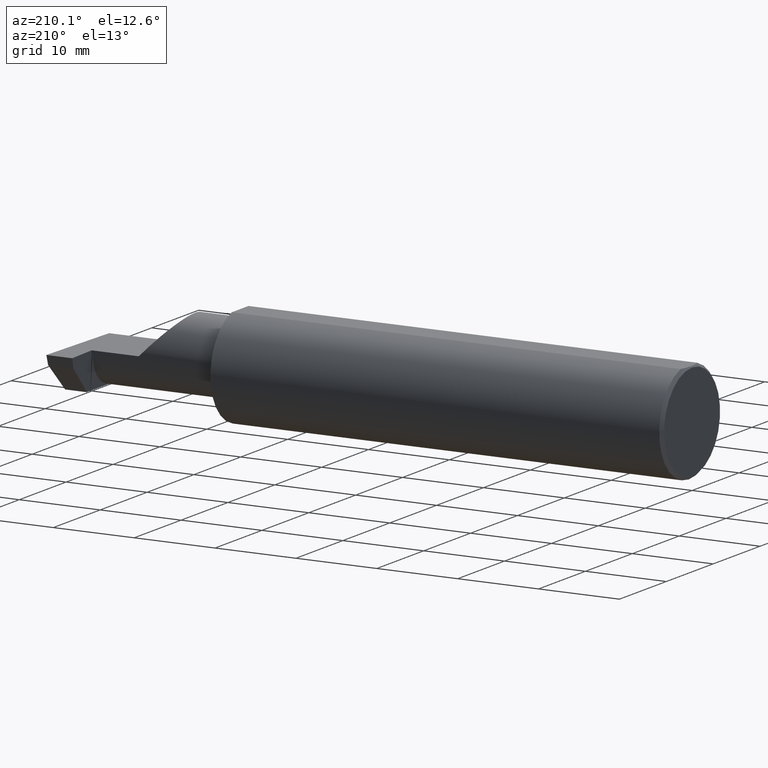
[diagram: clean part render]
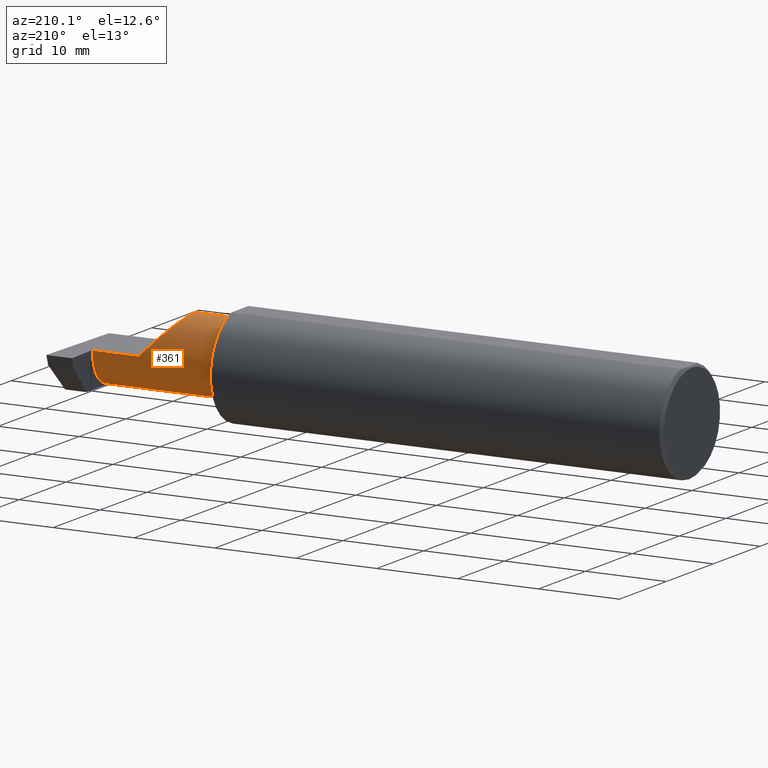
[diagram: same view with one face highlighted and labeled with its STEP entity id]
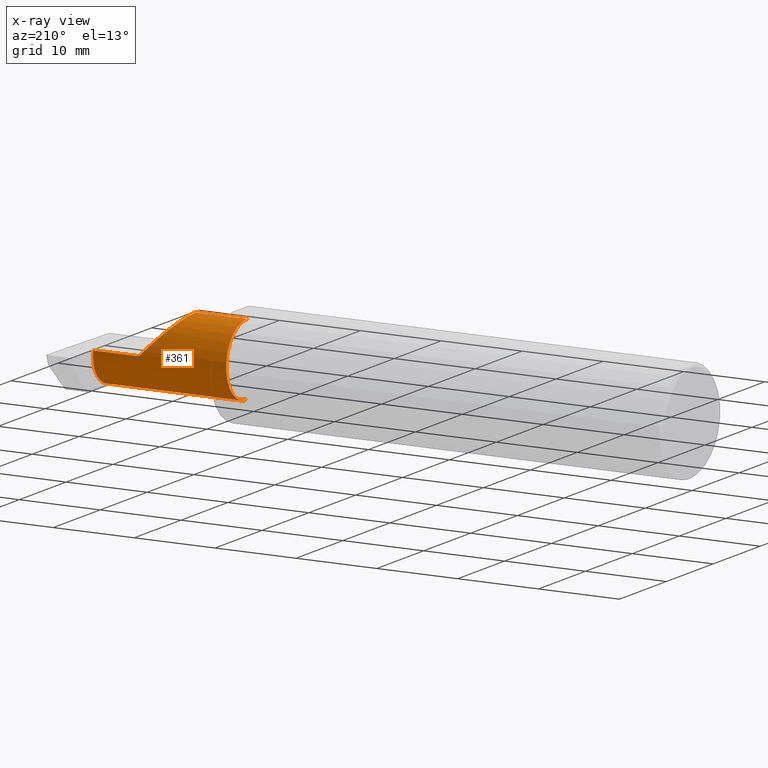
[diagram: x-ray of the same camera — body ghosted, the highlighted face saturated]
A machine part, auxiliary view. The second image highlights one B-rep face of the part: STEP entity #361.
The next image is the same camera in x-ray: the body ghosted, the highlighted face saturated — about 0% of this face is hidden behind the body in this view.
In plain terms, the highlighted cylindrical surface (partial cylindrical patch) has radius 4.445 mm, axis along (-1, -0, -0).
Its self-contained STEP definition (entity closure, byte-faithful):
#19 = EDGE_CURVE ( 'NONE', #341, #55, #82, .T. ) ;
#34 = CARTESIAN_POINT ( 'NONE',  ( 2.885036419112081862, -0.01887343476265496492, -0.1750000000000000444 ) ) ;
#37 = CARTESIAN_POINT ( 'NONE',  ( 2.874000000000000110, 0.07414999999999997982, 9.797164290271514876E-17 ) ) ;
#40 = VECTOR ( 'NONE', #523, 39.37007874015748143 ) ;
#45 = VERTEX_POINT ( 'NONE', #262 ) ;
#55 = VERTEX_POINT ( 'NONE', #431 ) ;
#72 = VERTEX_POINT ( 'NONE', #679 ) ;
#76 =( BOUNDED_CURVE ( )  B_SPLINE_CURVE ( 3, ( #731, #175, #315, #556 ),
 .UNSPECIFIED., .F., .T. ) 
 B_SPLINE_CURVE_WITH_KNOTS ( ( 4, 4 ),
 ( 0.000000000000000000, 1.570796326794896558 ),
 .UNSPECIFIED. ) 
 CURVE ( )  GEOMETRIC_REPRESENTATION_ITEM ( )  RATIONAL_B_SPLINE_CURVE ( ( 1.000000000000000000, 0.8047378541243649375, 0.8047378541243649375, 1.000000000000000000 ) ) 
 REPRESENTATION_ITEM ( '' )  );
#82 = CIRCLE ( 'NONE', #371, 0.1749999999999999889 ) ;
#109 = CYLINDRICAL_SURFACE ( 'NONE', #689, 0.1749999999999999889 ) ;
#110 = ORIENTED_EDGE ( 'NONE', *, *, #194, .T. ) ;
#119 = CIRCLE ( 'NONE', #678, 0.1749999999999999889 ) ;
#137 = CARTESIAN_POINT ( 'NONE',  ( 2.200000000000000178, -0.1008499999999999536, -0.1749999999999999889 ) ) ;
#138 = CARTESIAN_POINT ( 'NONE',  ( 2.874000000000000110, -0.1008499999999999674, 0.000000000000000000 ) ) ;
#141 = LINE ( 'NONE', #392, #742 ) ;
#167 = CARTESIAN_POINT ( 'NONE',  ( 2.874689495973013820, 0.07413112468343002748, -0.01577237022675150382 ) ) ;
#169 = EDGE_CURVE ( 'NONE', #690, #739, #119, .T. ) ;
#175 = CARTESIAN_POINT ( 'NONE',  ( 2.475000000000001421, 0.001662626584708371512, 0.1749999999999999889 ) ) ;
#178 = CARTESIAN_POINT ( 'NONE',  ( 2.876037492458068279, 0.06794054266098323303, -0.04620338416404774079 ) ) ;
#194 = EDGE_CURVE ( 'NONE', #728, #690, #445, .T. ) ;
#196 =( BOUNDED_CURVE ( )  B_SPLINE_CURVE ( 3, ( #480, #220, #167, #539 ),
 .UNSPECIFIED., .F., .T. ) 
 B_SPLINE_CURVE_WITH_KNOTS ( ( 4, 4 ),
 ( 4.443983221546778495, 4.709965478757016655 ),
 .UNSPECIFIED. ) 
 CURVE ( )  GEOMETRIC_REPRESENTATION_ITEM ( )  RATIONAL_B_SPLINE_CURVE ( ( 1.000000000000000000, 0.9941131374841131185, 0.9941131374841131185, 1.000000000000000000 ) ) 
 REPRESENTATION_ITEM ( '' )  );
#197 = DIRECTION ( 'NONE',  ( -1.000000000000000000, -0.000000000000000000, -0.000000000000000000 ) ) ;
#211 = DIRECTION ( 'NONE',  ( -1.000000000000000000, -0.000000000000000000, -0.000000000000000000 ) ) ;
#214 = DIRECTION ( 'NONE',  ( 0.000000000000000000, 0.000000000000000000, 1.000000000000000000 ) ) ;
#220 = CARTESIAN_POINT ( 'NONE',  ( 2.875372681961405608, 0.07204909126152565790, -0.03119400421533637113 ) ) ;
#222 = CARTESIAN_POINT ( 'NONE',  ( 2.885029432995152465, -0.1008500000000000091, -0.1749999999999999889 ) ) ;
#262 = CARTESIAN_POINT ( 'NONE',  ( 2.885029432995152465, -0.1008500000000000091, -0.1749999999999999889 ) ) ;
#265 = EDGE_CURVE ( 'NONE', #72, #341, #141, .T. ) ;
#272 = LINE ( 'NONE', #137, #668 ) ;
#280 = EDGE_LOOP ( 'NONE', ( #768, #357, #631, #713, #639, #110, #390, #544 ) ) ;
#281 = CARTESIAN_POINT ( 'NONE',  ( 2.876037492458068279, 0.06794054266098323303, -0.04620338416404774079 ) ) ;
#288 = DIRECTION ( 'NONE',  ( 0.000000000000000000, 0.000000000000000000, 1.000000000000000000 ) ) ;
#315 = CARTESIAN_POINT ( 'NONE',  ( 2.547487373415292744, 0.07414999999999996594, 0.1025126265847083745 ) ) ;
#326 = EDGE_CURVE ( 'NONE', #512, #739, #196, .T. ) ;
#341 = VERTEX_POINT ( 'NONE', #715 ) ;
#342 = CARTESIAN_POINT ( 'NONE',  ( 2.881564601548835647, 0.04629714416892564965, -0.1252712066320194051 ) ) ;
#357 = ORIENTED_EDGE ( 'NONE', *, *, #625, .T. ) ;
#361 = ADVANCED_FACE ( 'NONE', ( #767 ), #109, .T. ) ;
#371 = AXIS2_PLACEMENT_3D ( 'NONE', #561, #197, #566 ) ;
#390 = ORIENTED_EDGE ( 'NONE', *, *, #169, .T. ) ;
#392 = CARTESIAN_POINT ( 'NONE',  ( 2.200000000000000178, -0.1008499999999999674, 0.1749999999999999889 ) ) ;
#431 = CARTESIAN_POINT ( 'NONE',  ( 2.225000000000000089, -0.1008499999999999536, -0.1749999999999999889 ) ) ;
#445 = LINE ( 'NONE', #448, #40 ) ;
#448 = CARTESIAN_POINT ( 'NONE',  ( 2.200000000000000178, 0.07414999999999997982, 9.797174393178811359E-17 ) ) ;
#478 = EDGE_CURVE ( 'NONE', #72, #728, #76, .T. ) ;
#480 = CARTESIAN_POINT ( 'NONE',  ( 2.876037492458068279, 0.06794054266098323303, -0.04620338416404774079 ) ) ;
#512 = VERTEX_POINT ( 'NONE', #178 ) ;
#523 = DIRECTION ( 'NONE',  ( 1.000000000000000000, 0.000000000000000000, 0.000000000000000000 ) ) ;
#527 = CARTESIAN_POINT ( 'NONE',  ( 2.200000000000000178, -0.1008499999999999674, 0.000000000000000000 ) ) ;
#532 = CARTESIAN_POINT ( 'NONE',  ( 2.650000000000000355, 0.07414999999999997982, 4.286263797015727350E-17 ) ) ;
#539 = CARTESIAN_POINT ( 'NONE',  ( 2.874000000000000110, 0.07414987299205305638, -0.0002108382441793307837 ) ) ;
#544 = ORIENTED_EDGE ( 'NONE', *, *, #326, .F. ) ;
#556 = CARTESIAN_POINT ( 'NONE',  ( 2.650000000000000355, 0.07414999999999997982, 4.286263797015727350E-17 ) ) ;
#561 = CARTESIAN_POINT ( 'NONE',  ( 2.225000000000000089, -0.1008499999999999674, 0.000000000000000000 ) ) ;
#566 = DIRECTION ( 'NONE',  ( 0.000000000000000000, 0.000000000000000000, 1.000000000000000000 ) ) ;
#583 = DIRECTION ( 'NONE',  ( -1.000000000000000000, -0.000000000000000000, -0.000000000000000000 ) ) ;
#587 = CARTESIAN_POINT ( 'NONE',  ( 2.874000000000000110, 0.07414987299205305638, -0.0002108382441793307837 ) ) ;
#625 = EDGE_CURVE ( 'NONE', #45, #55, #272, .T. ) ;
#631 = ORIENTED_EDGE ( 'NONE', *, *, #19, .F. ) ;
#639 = ORIENTED_EDGE ( 'NONE', *, *, #478, .T. ) ;
#659 =( BOUNDED_CURVE ( )  B_SPLINE_CURVE ( 3, ( #222, #34, #342, #281 ),
 .UNSPECIFIED., .F., .F. ) 
 B_SPLINE_CURVE_WITH_KNOTS ( ( 4, 4 ),
 ( 3.140373936913444908, 4.443983221546777607 ),
 .UNSPECIFIED. ) 
 CURVE ( )  GEOMETRIC_REPRESENTATION_ITEM ( )  RATIONAL_B_SPLINE_CURVE ( ( 1.000000000000000000, 0.8633269052189371795, 0.8633269052189371795, 1.000000000000000000 ) ) 
 REPRESENTATION_ITEM ( '' )  );
#668 = VECTOR ( 'NONE', #695, 39.37007874015748143 ) ;
#678 = AXIS2_PLACEMENT_3D ( 'NONE', #138, #583, #214 ) ;
#679 = CARTESIAN_POINT ( 'NONE',  ( 2.475000000000001421, -0.1008499999999999674, 0.1749999999999999889 ) ) ;
#689 = AXIS2_PLACEMENT_3D ( 'NONE', #527, #711, #288 ) ;
#690 = VERTEX_POINT ( 'NONE', #37 ) ;
#692 = EDGE_CURVE ( 'NONE', #45, #512, #659, .T. ) ;
#695 = DIRECTION ( 'NONE',  ( -1.000000000000000000, -0.000000000000000000, -0.000000000000000000 ) ) ;
#711 = DIRECTION ( 'NONE',  ( -1.000000000000000000, -0.000000000000000000, -0.000000000000000000 ) ) ;
#713 = ORIENTED_EDGE ( 'NONE', *, *, #265, .F. ) ;
#715 = CARTESIAN_POINT ( 'NONE',  ( 2.225000000000000089, -0.1008499999999999674, 0.1749999999999999889 ) ) ;
#728 = VERTEX_POINT ( 'NONE', #532 ) ;
#731 = CARTESIAN_POINT ( 'NONE',  ( 2.475000000000001421, -0.1008499999999999674, 0.1749999999999999889 ) ) ;
#739 = VERTEX_POINT ( 'NONE', #587 ) ;
#742 = VECTOR ( 'NONE', #211, 39.37007874015748143 ) ;
#767 = FACE_OUTER_BOUND ( 'NONE', #280, .T. ) ;
#768 = ORIENTED_EDGE ( 'NONE', *, *, #692, .F. ) ;